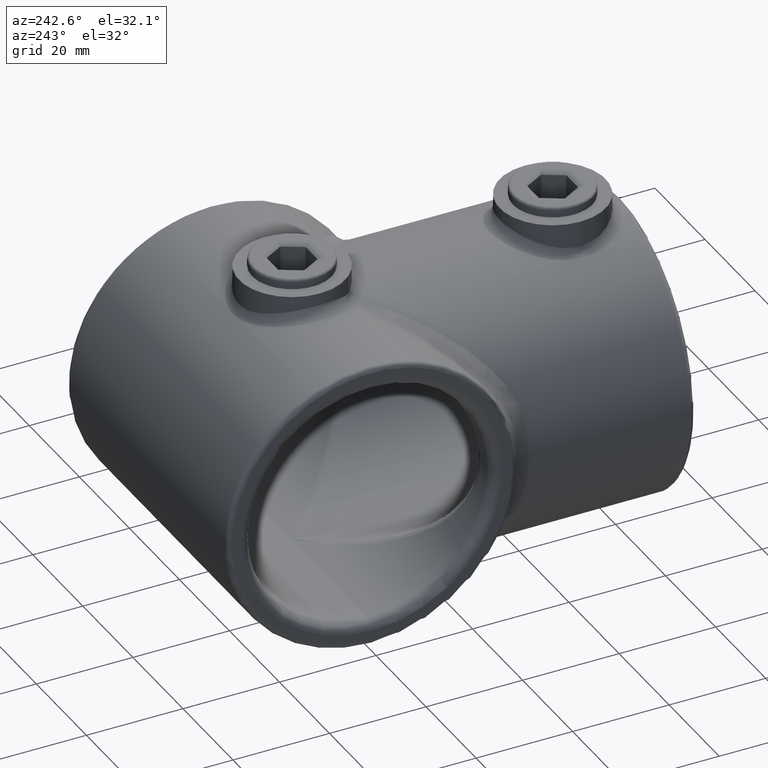
[diagram: clean part render]
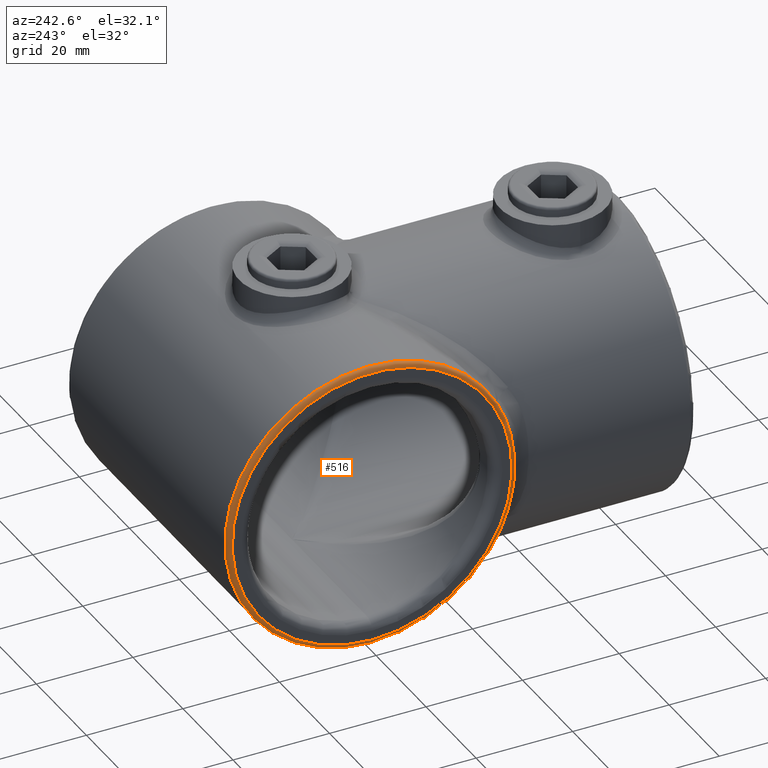
[diagram: same view with one face highlighted and labeled with its STEP entity id]
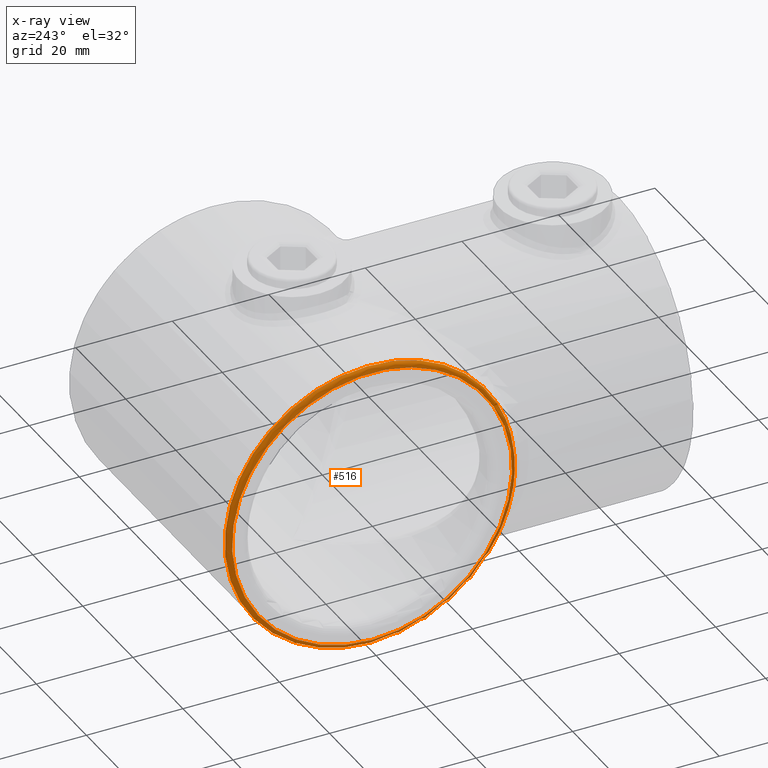
[diagram: x-ray of the same camera — body ghosted, the highlighted face saturated]
A machine part, auxiliary view. The second image highlights one B-rep face of the part: STEP entity #516.
The next image is the same camera in x-ray: the body ghosted, the highlighted face saturated — about 0% of this face is hidden behind the body in this view.
In plain terms, the highlighted toroidal blend (fillet) surface has major radius 29 mm and minor (blend) radius 1 mm.
Its self-contained STEP definition (entity closure, byte-faithful):
#15 = VERTEX_POINT ( 'NONE', #2281 ) ;
#41 = CARTESIAN_POINT ( 'NONE',  ( -31.10878070053344047, 40.86912782582810166, -12.85955039807775613 ) ) ;
#88 = CARTESIAN_POINT ( 'NONE',  ( -31.60034303425054247, 38.56391314288215000, -4.798631641924220759 ) ) ;
#267 = CARTESIAN_POINT ( 'NONE',  ( -32.00000000000000000, 68.00000000000000000, 0.000000000000000000 ) ) ;
#303 = CARTESIAN_POINT ( 'NONE',  ( -31.00000000000000000, 41.42857142857142350, 13.92692297937591128 ) ) ;
#364 = CARTESIAN_POINT ( 'NONE',  ( -31.56008358108635647, 38.75051014760153123, -5.982241651065086430 ) ) ;
#379 = CARTESIAN_POINT ( 'NONE',  ( -31.65370958219056163, 38.31543575698061943, 2.402456805347758184 ) ) ;
#426 = EDGE_CURVE ( 'NONE', #4007, #1612, #3707, .T. ) ;
#516 = ADVANCED_FACE ( 'NONE', ( #1303, #1166 ), #1907, .T. ) ;
#591 = EDGE_CURVE ( 'NONE', #4007, #1612, #3367, .T. ) ;
#981 = CARTESIAN_POINT ( 'NONE',  ( -31.37861172073158755, 39.58904872389302199, 9.489461034424660824 ) ) ;
#998 = CARTESIAN_POINT ( 'NONE',  ( -31.60068735206713342, 38.56231296220343552, 4.786513230295136978 ) ) ;
#1011 = EDGE_LOOP ( 'NONE', ( #2010, #3626 ) ) ;
#1014 = CARTESIAN_POINT ( 'NONE',  ( -31.20820062659706551, 40.39315672796156065, -11.75739826362560159 ) ) ;
#1166 = FACE_OUTER_BOUND ( 'NONE', #1011, .T. ) ;
#1303 = FACE_OUTER_BOUND ( 'NONE', #3848, .T. ) ;
#1323 = CARTESIAN_POINT ( 'NONE',  ( -31.00000000000000000, 41.42857142857142350, 13.92692297937591128 ) ) ;
#1340 = CARTESIAN_POINT ( 'NONE',  ( -31.47716631988147640, 39.13415139579819879, -7.739528669395244975 ) ) ;
#1612 = VERTEX_POINT ( 'NONE', #303 ) ;
#1649 = CARTESIAN_POINT ( 'NONE',  ( -31.00000000000000000, 41.42857142857142350, -13.92692297937591128 ) ) ;
#1670 = CARTESIAN_POINT ( 'NONE',  ( -31.37518243716164790, 39.60738690967194486, -9.481174422485914022 ) ) ;
#1907 = TOROIDAL_SURFACE ( 'NONE', #3546, 28.99999999999999645, 1.000000000000000000 ) ;
#1950 = CARTESIAN_POINT ( 'NONE',  ( -31.56043384641674265, 38.74888952032826239, 5.974877472651729526 ) ) ;
#2010 = ORIENTED_EDGE ( 'NONE', *, *, #591, .F. ) ;
#2281 = CARTESIAN_POINT ( 'NONE',  ( -32.00000000000000000, 68.00000000000000000, -28.99999999999999645 ) ) ;
#2286 = CARTESIAN_POINT ( 'NONE',  ( -31.00000000000000000, 41.42857142857142350, -13.92692297937591128 ) ) ;
#2349 = DIRECTION ( 'NONE',  ( 1.000000000000000000, 0.000000000000000000, 0.000000000000000000 ) ) ;
#2410 = CIRCLE ( 'NONE', #3139, 28.99999999999999645 ) ;
#2450 = DIRECTION ( 'NONE',  ( 1.000000000000000000, 0.000000000000000000, 0.000000000000000000 ) ) ;
#2609 = CARTESIAN_POINT ( 'NONE',  ( -31.10877387950490913, 40.86916290540336405, 12.85961732703470162 ) ) ;
#2640 = CARTESIAN_POINT ( 'NONE',  ( -31.65362606530423051, 38.31582759668568627, -2.409548336667117763 ) ) ;
#2655 = CARTESIAN_POINT ( 'NONE',  ( -31.00000000000000000, 68.00000000000000000, 0.000000000000000000 ) ) ;
#2696 = AXIS2_PLACEMENT_3D ( 'NONE', #2976, #2450, #3055 ) ;
#2870 = DIRECTION ( 'NONE',  ( -1.000000000000000000, -0.000000000000000000, -0.000000000000000000 ) ) ;
#2903 = CARTESIAN_POINT ( 'NONE',  ( -31.66668809205332735, 38.25454371706349121, -1.199302576586980473 ) ) ;
#2960 = CARTESIAN_POINT ( 'NONE',  ( -31.44576438626918602, 39.27940649037697085, -8.322255407365988233 ) ) ;
#2976 = CARTESIAN_POINT ( 'NONE',  ( -31.00000000000000000, 68.00000000000000000, 0.000000000000000000 ) ) ;
#3055 = DIRECTION ( 'NONE',  ( 0.000000000000000000, 0.000000000000000000, -1.000000000000000000 ) ) ;
#3139 = AXIS2_PLACEMENT_3D ( 'NONE', #267, #2870, #3868 ) ;
#3251 = CARTESIAN_POINT ( 'NONE',  ( -31.33598084536238915, 39.79019325289262810, -10.05717666563526791 ) ) ;
#3367 = CIRCLE ( 'NONE', #2696, 30.00000000000000000 ) ;
#3430 = ORIENTED_EDGE ( 'NONE', *, *, #3989, .F. ) ;
#3546 = AXIS2_PLACEMENT_3D ( 'NONE', #2655, #2349, #3705 ) ;
#3555 = CARTESIAN_POINT ( 'NONE',  ( -31.66664518848173060, 38.25474454508091071, 1.205220716516129942 ) ) ;
#3626 = ORIENTED_EDGE ( 'NONE', *, *, #426, .T. ) ;
#3705 = DIRECTION ( 'NONE',  ( 0.000000000000000000, 0.000000000000000000, -1.000000000000000000 ) ) ;
#3707 = B_SPLINE_CURVE_WITH_KNOTS ( 'NONE', 3,
 ( #2286, #41, #1014, #3251, #1670, #2960, #1340, #364, #88, #2640, #2903, #3555, #379, #998, #1950, #3892, #981, #3835, #2609, #1323 ),
 .UNSPECIFIED., .F., .F.,
 ( 4, 2, 2, 2, 2, 2, 2, 2, 2, 4 ),
 ( 0.000000000000000000, 0.003613105893650791958, 0.005419658840476183383, 0.007226211787301574374, 0.01083931768095235809, 0.01445242357460314181, 0.01806552946825392553, 0.02167863536190471271, 0.02529174125555549990, 0.02890484714920628362 ),
 .UNSPECIFIED. ) ;
#3835 = CARTESIAN_POINT ( 'NONE',  ( -31.20872922289058948, 40.39064237517236933, 11.75083980837661635 ) ) ;
#3848 = EDGE_LOOP ( 'NONE', ( #3430 ) ) ;
#3868 = DIRECTION ( 'NONE',  ( 0.000000000000000000, 0.000000000000000000, -1.000000000000000000 ) ) ;
#3892 = CARTESIAN_POINT ( 'NONE',  ( -31.44914751268997577, 39.26378872043457591, 8.333279414554217723 ) ) ;
#3989 = EDGE_CURVE ( 'NONE', #15, #15, #2410, .T. ) ;
#4007 = VERTEX_POINT ( 'NONE', #1649 ) ;